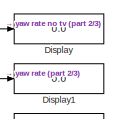
[diagram: root canvas - part 1/3, top right region]
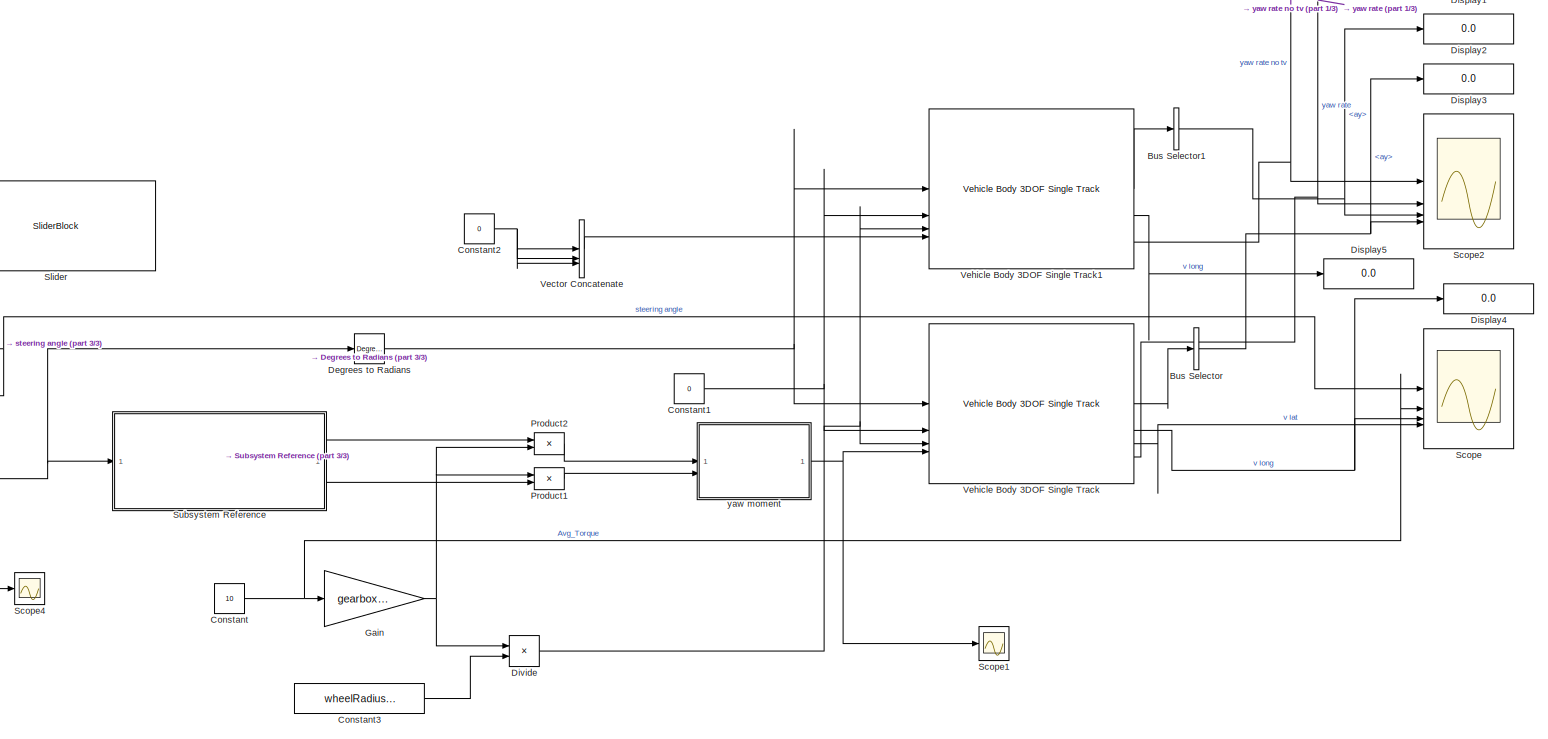
[diagram: root canvas - part 2/3, most of the canvas]
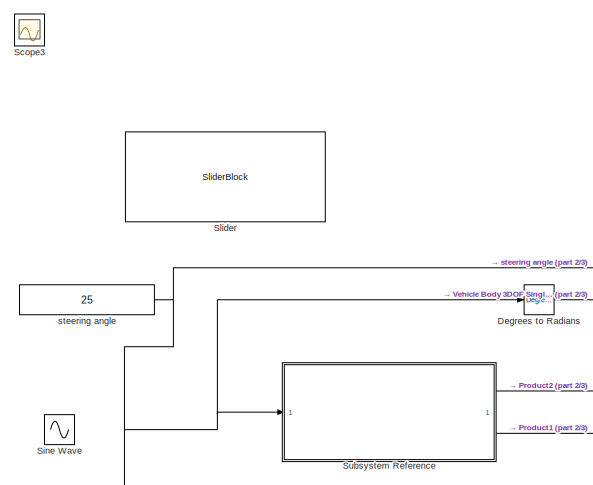
[diagram: root canvas - part 3/3, middle left region]
MODEL slx_32f8226facac
KIND model
CONFIG AbsTol = auto
CONFIG EnableMultiTasking = off
CONFIG FixedStep = 0.01
CONFIG MaxStep = auto
CONFIG MinStep = auto
CONFIG RelTol = 1e-3
CONFIG SampleTimeConstraint = Unconstrained
CONFIG SolverName = FixedStepAuto
CONFIG StartTime = 0.0
CONFIG StopTime = 300
BLOCK [BusSelector] Bus Selector
  OutputSignals = BdyFrm.Cg.Acc.ay
BLOCK [BusSelector] Bus Selector1
  OutputSignals = BdyFrm.Cg.Acc.ay
BLOCK [Constant] Constant
  Value = 10
BLOCK [Constant] Constant1
  Value = 0
BLOCK [Constant] Constant2
  Value = 0
BLOCK [Constant] Constant3
  Value = wheelRadius_m
BLOCK [Reference] Degrees to Radians  REF=simulink_extras/Transformations/Degrees to
Radians
  SourceBlock = simulink_extras/Transformations/Degrees to\nRadians
  SourceType = DegreesToRadians
BLOCK [Display] Display
  Decimation = 1
BLOCK [Display] Display1
  Decimation = 1
BLOCK [Display] Display2
  Decimation = 1
BLOCK [Display] Display3
  Decimation = 1
BLOCK [Display] Display4
  Decimation = 1
BLOCK [Display] Display5
  Decimation = 1
BLOCK [Product] Divide
  Inputs = */
BLOCK [Gain] Gain
  Gain = gearboxRatio
BLOCK [Product] Product1
BLOCK [Product] Product2
BLOCK [Scope] Scope
  Floating = off
  NumInputPorts = 4
  ScopeSpecificationString = Simulink.scopes.TimeScopeBlockCfg('CurrentConfiguration', extmgr.ConfigurationSet(extmgr.Configuration('Core','General UI',true),extmgr.Configuration('Core','Source UI',true),extmgr.Configuration('Sources','WiredSimulink',true,'DataLoggingVariableName','ScopeData1'),extmgr.Configuration('Visuals','Time Domain',true,'SerializedDisplays',{struct('MinYLimReal','-5.99755','MaxYLimReal','24.26855','YLa...<+1598ch>
BLOCK [Scope] Scope1
  Floating = off
  NumInputPorts = 1
  ScopeSpecificationString = Simulink.scopes.TimeScopeBlockCfg('CurrentConfiguration', extmgr.ConfigurationSet(extmgr.Configuration('Core','General UI',true),extmgr.Configuration('Core','Source UI',true),extmgr.Configuration('Sources','WiredSimulink',true,'DataLoggingVariableName','ScopeData1'),extmgr.Configuration('Visuals','Time Domain',true,'SerializedDisplays',{struct('MinYLimReal','-16.17641','MaxYLimReal','145.58766','Y...<+1411ch>
BLOCK [Scope] Scope2
  Floating = off
  NumInputPorts = 4
  ScopeSpecificationString = Simulink.scopes.TimeScopeBlockCfg('CurrentConfiguration', extmgr.ConfigurationSet(extmgr.Configuration('Core','General UI',true),extmgr.Configuration('Core','Source UI',true),extmgr.Configuration('Sources','WiredSimulink',true,'DataLoggingVariableName','ScopeData2'),extmgr.Configuration('Visuals','Time Domain',true,'SerializedDisplays',{struct('MinYLimReal','-7.6795','MaxYLimReal','5.55858','YLabe...<+1556ch>
BLOCK [Scope] Scope3
  Floating = off
  IOType = viewer
  NumInputPorts = 1
  ScopeSpecificationString = Simulink.scopes.TimeScopeBlockCfg('CurrentConfiguration', extmgr.ConfigurationSet(extmgr.Configuration('Core','General UI',true),extmgr.Configuration('Core','Source UI',true),extmgr.Configuration('Sources','WiredSimulink',true,'DataLoggingVariableName','ScopeData3'),extmgr.Configuration('Visuals','Time Domain',true,'SerializedDisplays',{struct('MinYLimReal','-10.00000','MaxYLimReal','10.00000','YL...<+1365ch>
BLOCK [Scope] Scope4
  Floating = off
  NumInputPorts = 1
  ScopeSpecificationString = Simulink.scopes.TimeScopeBlockCfg('CurrentConfiguration', extmgr.ConfigurationSet(extmgr.Configuration('Core','General UI',true),extmgr.Configuration('Core','Source UI',true),extmgr.Configuration('Sources','WiredSimulink',true,'DataLoggingVariableName','ScopeData3'),extmgr.Configuration('Visuals','Time Domain',true,'SerializedDisplays',{struct('MinYLimReal','15.00000','MaxYLimReal','35.00000','YLa...<+1450ch>
BLOCK [Sin] Sine Wave
  Amplitude = 25
  SampleTime = 0
BLOCK [SliderBlock] Slider
  ScaleMax = 25
  ScaleMin = -25
BLOCK [SubSystem] Subsystem Reference
  ReferencedSubsystem = open_loop_tv
BLOCK [Concatenate] Vector Concatenate
  NumInputs = 3
BLOCK [Reference] Vehicle Body 3DOF Single Track  REF=autolibshared/Vehicle Body 3DOF Single Track
  LibrarySourceBlock = vehdynlibeom/Vehicle Body 3DOF Single Track
  SourceBlock = autolibshared/Vehicle Body 3DOF Single Track
  SourceType = Vehicle Body 3DOF Lateral
BLOCK [Reference] Vehicle Body 3DOF Single Track1  REF=autolibshared/Vehicle Body 3DOF Single Track
  LibrarySourceBlock = vehdynlibeom/Vehicle Body 3DOF Single Track
  SourceBlock = autolibshared/Vehicle Body 3DOF Single Track
  SourceType = Vehicle Body 3DOF Lateral
BLOCK [Constant] steering angle
  Value = 25
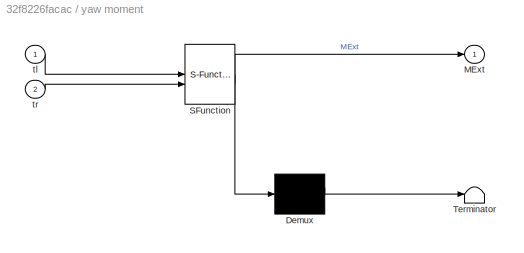
BLOCK [SubSystem] yaw moment
  ErrorFcn = Stateflow.Translate.translate
  LibrarySourceBlock = simulink/User-Defined\nFunctions/MATLAB Function
  PermitHierarchicalResolution = ExplicitOnly
  SFBlockType = MATLAB Function
  TreatAsAtomicUnit = on
BLOCK [Demux] yaw moment/ Demux 
  Outputs = 1
BLOCK [S-Function] yaw moment/ SFunction 
  EnableBusSupport = on
  FunctionName = sf_sfun
  PortCounts = [2 2]
  SFcnIsStateOwnerBlock = off
  SFunctionDeploymentMode = off
  Tag = Stateflow S-Function 2
BLOCK [Terminator] yaw moment/ Terminator 
BLOCK [Outport] yaw moment/MExt
BLOCK [Inport] yaw moment/tl
BLOCK [Inport] yaw moment/tr
  Port = 2
NET Bus Selector1:1 -> Display2:1, Scope2:3
NET Bus Selector:1 -> Display3:1, Scope2:4
NET Constant1:1 -> Vehicle Body 3DOF Single Track1:2, Vehicle Body 3DOF Single Track:2
NET Constant2:1 -> Vector Concatenate:1, Vector Concatenate:2, Vector Concatenate:3
LINE Constant3:1 -> Divide:2
NET Constant:1 -> Gain:1, Scope:2
NET Degrees to Radians:1 -> Vehicle Body 3DOF Single Track1:1, Vehicle Body 3DOF Single Track:1
NET Divide:1 -> Vehicle Body 3DOF Single Track1:3, Vehicle Body 3DOF Single Track:3
NET Gain:1 -> Divide:1, Product1:1, Product2:2
LINE Product1:1 -> yaw moment:2
LINE Product2:1 -> yaw moment:1
LINE Subsystem Reference:1 -> Product2:1
LINE Subsystem Reference:2 -> Product1:2
LINE Vector Concatenate:1 -> Vehicle Body 3DOF Single Track1:4
LINE Vehicle Body 3DOF Single Track1:1 -> Bus Selector1:1
LINE Vehicle Body 3DOF Single Track1:2 -> Display5:1
NET Vehicle Body 3DOF Single Track1:5 -> Display:1, Scope2:1
LINE Vehicle Body 3DOF Single Track:1 -> Bus Selector:1
NET Vehicle Body 3DOF Single Track:2 -> Display4:1, Scope:3
LINE Vehicle Body 3DOF Single Track:3 -> Scope:4
NET Vehicle Body 3DOF Single Track:5 -> Display1:1, Scope2:2
NET steering angle:1 -> Degrees to Radians:1, Scope4:1, Scope:1, Subsystem Reference:1
NET yaw moment:1 -> Scope1:1, Vehicle Body 3DOF Single Track:4
note: NET lines group one-source signal fan-out (src -> all destinations, sorted); 1:1 wires keep LINE
CHART yaw moment states=1 transitions=1
  STATE_LABEL 'eML_blk_kernel()'
  STATE_LABEL 'SCRIPT:\nfunction MExt = fcn(tl,tr)\nm = (tl/0.203-tr/0.203)*0.5*1.285;\nMExt = [0,0,m];\n'
CHART  states=0 transitions=0
